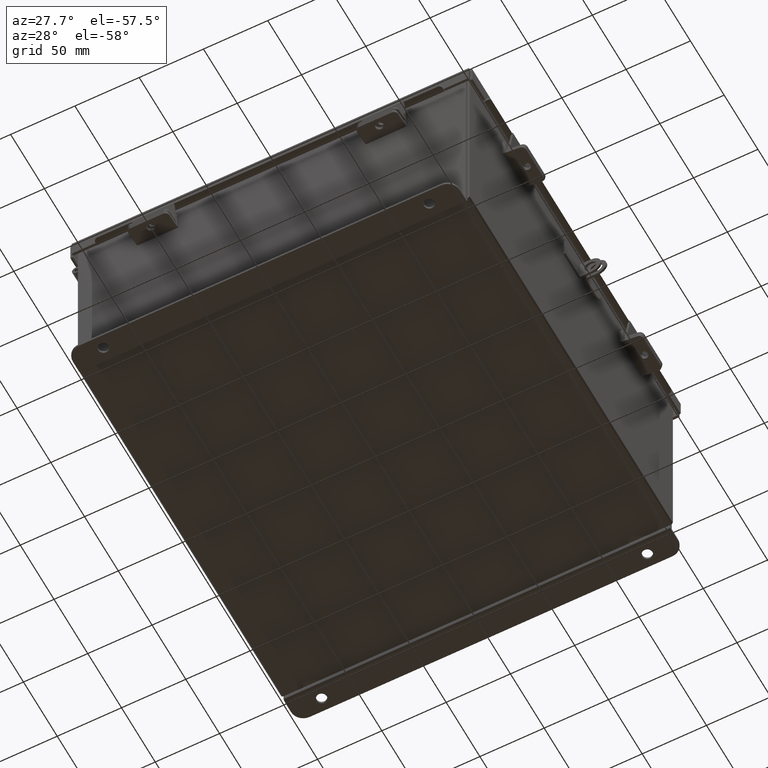
[diagram: clean part render]
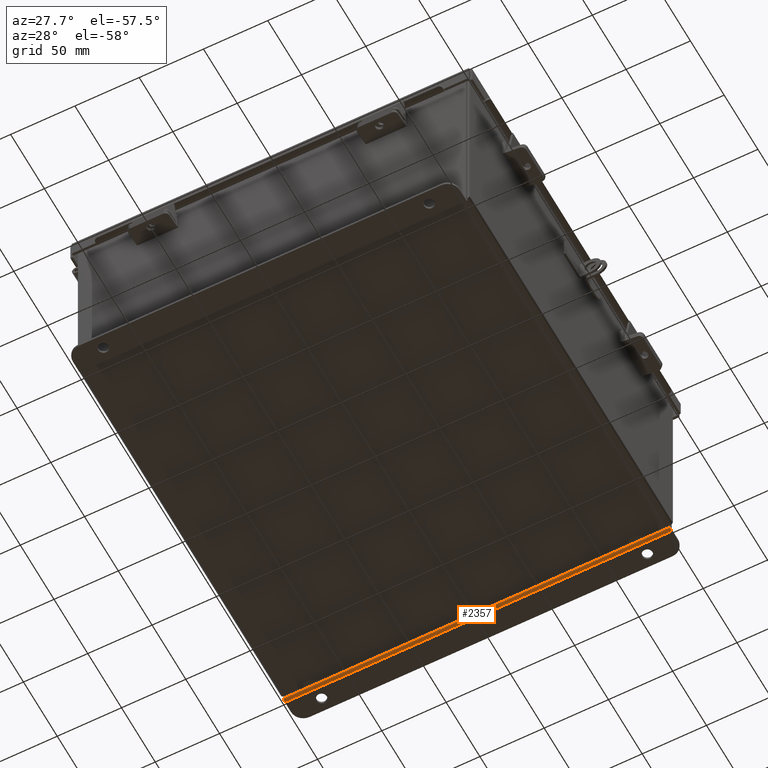
[diagram: same view with one face highlighted and labeled with its STEP entity id]
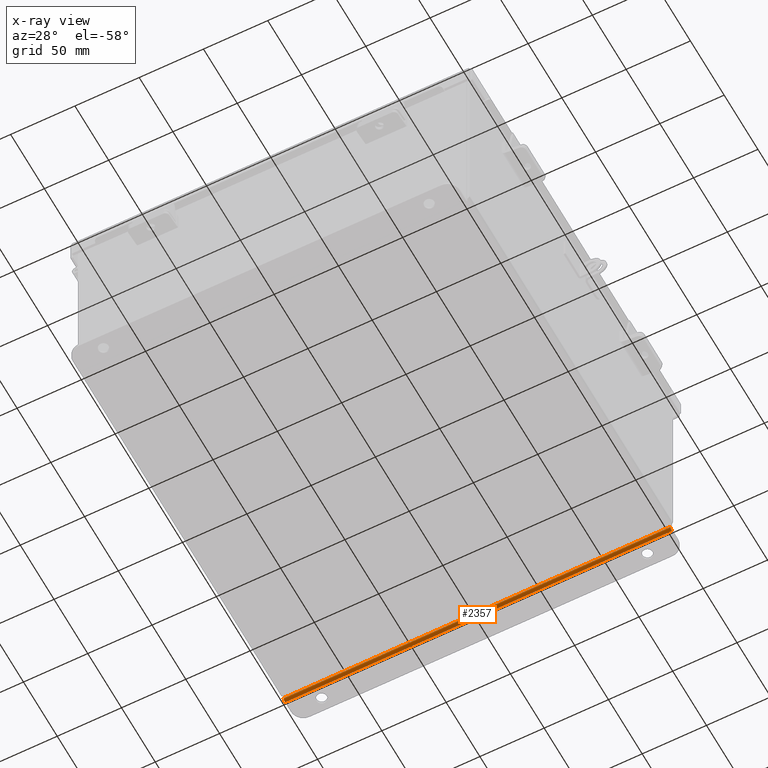
[diagram: x-ray of the same camera — body ghosted, the highlighted face saturated]
A machine part, auxiliary view. The second image highlights one B-rep face of the part: STEP entity #2357.
The next image is the same camera in x-ray: the body ghosted, the highlighted face saturated — about 0% of this face is hidden behind the body in this view.
In plain terms, the highlighted cylindrical surface (edge-blend (fillet) strip) has radius 2.2276 mm, axis along (-1, 0, 0).
Its self-contained STEP definition (entity closure, byte-faithful):
#636 = VECTOR ( 'NONE', #3102, 39.37007874015748100 ) ;
#1893 = DIRECTION ( 'NONE',  ( -1.000000000000000000, 0.0000000000000000000, 0.0000000000000000000 ) ) ;
#2020 = EDGE_CURVE ( 'NONE', #7244, #6062, #2632, .T. ) ;
#2357 = ADVANCED_FACE ( 'NONE', ( #11516 ), #4313, .T. ) ;
#2476 = EDGE_LOOP ( 'NONE', ( #7001, #7202, #12993, #3446 ) ) ;
#2632 = CIRCLE ( 'NONE', #12415, 0.08770000000000026400 ) ;
#3102 = DIRECTION ( 'NONE',  ( 1.000000000000000000, -0.0000000000000000000, -0.0000000000000000000 ) ) ;
#3446 = ORIENTED_EDGE ( 'NONE', *, *, #2020, .F. ) ;
#4101 = VERTEX_POINT ( 'NONE', #13568 ) ;
#4245 = LINE ( 'NONE', #13930, #636 ) ;
#4313 = CYLINDRICAL_SURFACE ( 'NONE', #4457, 0.08770000000000026400 ) ;
#4457 = AXIS2_PLACEMENT_3D ( 'NONE', #9112, #17227, #13141 ) ;
#5944 = CARTESIAN_POINT ( 'NONE',  ( -5.925300000000000000, 0.01300000000000062700, -3.187000000000000300 ) ) ;
#6062 = VERTEX_POINT ( 'NONE', #13594 ) ;
#7001 = ORIENTED_EDGE ( 'NONE', *, *, #14580, .F. ) ;
#7202 = ORIENTED_EDGE ( 'NONE', *, *, #16994, .F. ) ;
#7244 = VERTEX_POINT ( 'NONE', #17465 ) ;
#7935 = DIRECTION ( 'NONE',  ( 1.000000000000000000, -0.0000000000000000000, -0.0000000000000000000 ) ) ;
#9112 = CARTESIAN_POINT ( 'NONE',  ( -5.925300000000001800, 0.01300000000000001500, -3.099299999999999900 ) ) ;
#10016 = CARTESIAN_POINT ( 'NONE',  ( -5.925300000000000000, 0.01300000000000001500, -3.099299999999999900 ) ) ;
#10328 = DIRECTION ( 'NONE',  ( 0.0000000000000000000, 0.0000000000000000000, 1.000000000000000000 ) ) ;
#10370 = DIRECTION ( 'NONE',  ( 1.000000000000000000, -0.0000000000000000000, -0.0000000000000000000 ) ) ;
#10486 = CARTESIAN_POINT ( 'NONE',  ( 5.925299999999999100, 0.01300000000000001500, -3.099299999999999900 ) ) ;
#11138 = AXIS2_PLACEMENT_3D ( 'NONE', #10016, #1893, #11382 ) ;
#11382 = DIRECTION ( 'NONE',  ( 0.0000000000000000000, 0.0000000000000000000, 1.000000000000000000 ) ) ;
#11516 = FACE_OUTER_BOUND ( 'NONE', #2476, .T. ) ;
#12101 = LINE ( 'NONE', #16063, #15669 ) ;
#12415 = AXIS2_PLACEMENT_3D ( 'NONE', #10486, #10370, #10328 ) ;
#12993 = ORIENTED_EDGE ( 'NONE', *, *, #14881, .T. ) ;
#13141 = DIRECTION ( 'NONE',  ( 0.0000000000000000000, -3.699053013085864000E-015, -1.000000000000000000 ) ) ;
#13393 = VERTEX_POINT ( 'NONE', #5944 ) ;
#13568 = CARTESIAN_POINT ( 'NONE',  ( -5.925300000000000000, -0.07470000000000008600, -3.099299999999999900 ) ) ;
#13594 = CARTESIAN_POINT ( 'NONE',  ( 5.925299999999999100, 0.01299999999999968500, -3.187000000000000300 ) ) ;
#13736 = CIRCLE ( 'NONE', #11138, 0.08770000000000026400 ) ;
#13930 = CARTESIAN_POINT ( 'NONE',  ( 5.925299999999999100, 0.01300000000000062700, -3.187000000000000300 ) ) ;
#14580 = EDGE_CURVE ( 'NONE', #4101, #7244, #12101, .T. ) ;
#14881 = EDGE_CURVE ( 'NONE', #13393, #6062, #4245, .T. ) ;
#15669 = VECTOR ( 'NONE', #7935, 39.37007874015748100 ) ;
#16063 = CARTESIAN_POINT ( 'NONE',  ( -5.925300000000001800, -0.07470000000000008600, -3.099299999999999900 ) ) ;
#16994 = EDGE_CURVE ( 'NONE', #13393, #4101, #13736, .T. ) ;
#17227 = DIRECTION ( 'NONE',  ( -1.000000000000000000, 0.0000000000000000000, 0.0000000000000000000 ) ) ;
#17465 = CARTESIAN_POINT ( 'NONE',  ( 5.925299999999999100, -0.07470000000000008600, -3.099299999999999900 ) ) ;